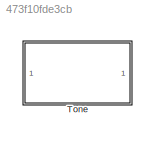
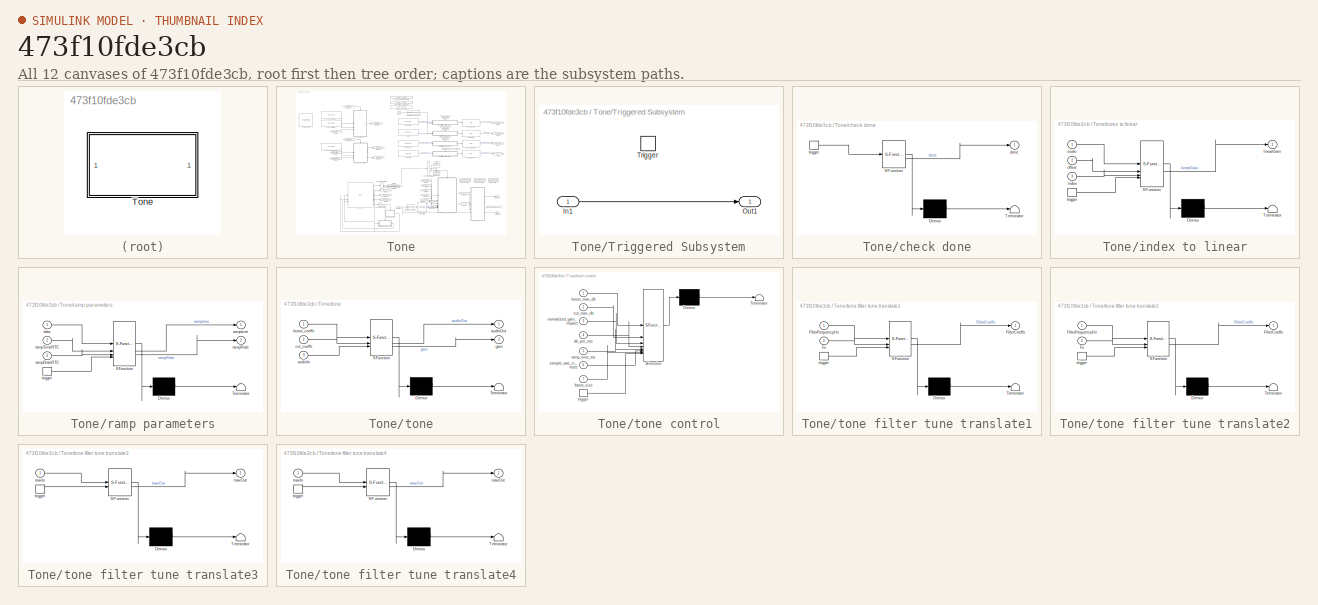
[diagram: thumbnail index - all 12 canvases of the model, root first then tree order]
MODEL slx_473f10fde3cb
KIND library
CONFIG AbsTol = auto
CONFIG EnableMultiTasking = off
CONFIG FixedStep = auto
CONFIG MaxStep = auto
CONFIG MinStep = auto
CONFIG RelTol = 1e-3
CONFIG SampleTimeConstraint = Unconstrained
CONFIG SolverName = VariableStepAuto
CONFIG StartTime = 0.0
CONFIG StopTime = 10.0
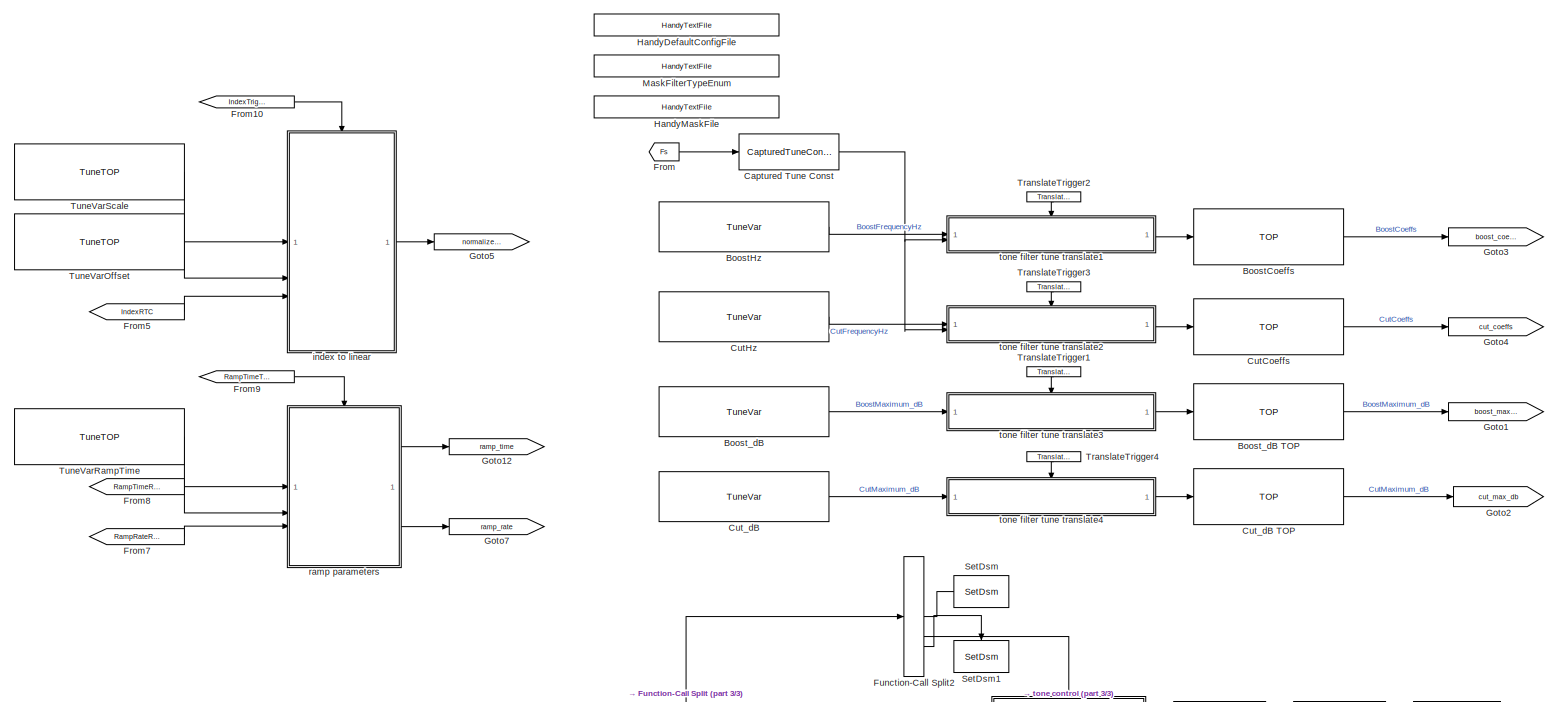
[diagram: Tone - part 1/3, full width, top band]
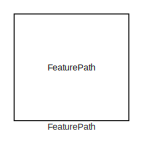
[diagram: Tone - part 2/3, top left region]
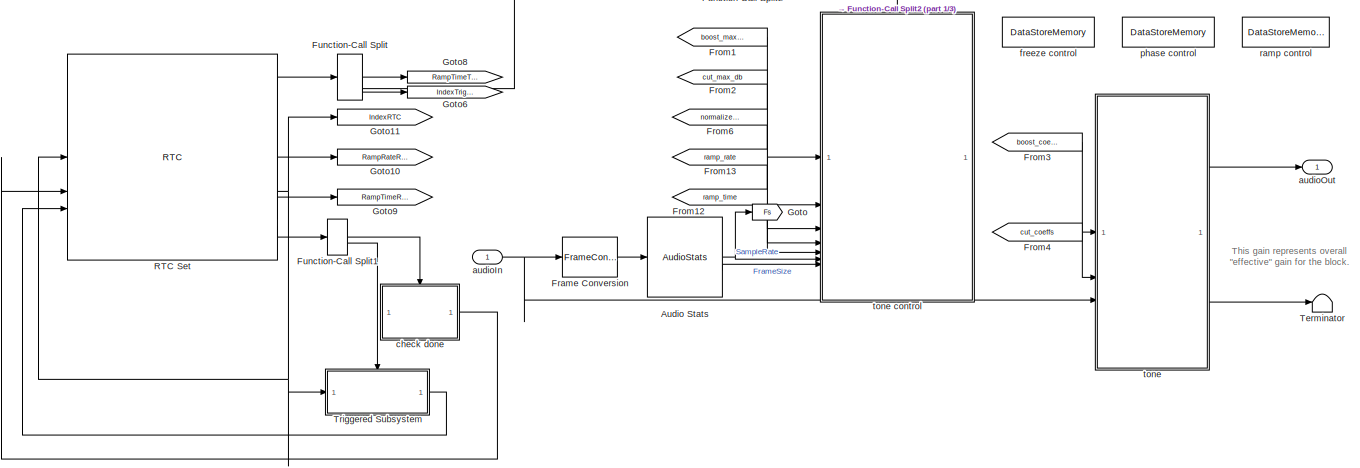
[diagram: Tone - part 3/3, full width, bottom band]
BLOCK [SubSystem] Tone
BLOCK [Reference] Tone/Audio Stats  REF=AudioStats/AudioStats
  SourceBlock = AudioStats/AudioStats
  SourceProductName = Bose Talaria
  SourceType = Talaria Audio Statistics
BLOCK [Reference] Tone/BoostCoeffs  REF=TOP/TOP
  SourceBlock = TOP/TOP
  SourceProductName = Bose Talaria
  SourceType = Talaria Target Overlay Parameter
BLOCK [Reference] Tone/BoostHz  REF=TuneVar/TuneVar
  Description = Indicates the 'corner frequency' of the target frequency band for the 'Boost' filter.
  SourceBlock = TuneVar/TuneVar
  SourceProductName = Bose Talaria
  SourceType = Talaria Tune Variable
BLOCK [Reference] Tone/Boost_dB  REF=TuneVar/TuneVar
  Description = Indicates the maximum impact in dB for the tone boost. This value must be positive. A negative boost impact would imply a gain cut instead!
  SourceBlock = TuneVar/TuneVar
  SourceProductName = Bose Talaria
  SourceType = Talaria Tune Variable
BLOCK [Reference] Tone/Boost_dB TOP  REF=TOP/TOP
  SourceBlock = TOP/TOP
  SourceProductName = Bose Talaria
  SourceType = Talaria Target Overlay Parameter
BLOCK [Reference] Tone/Captured Tune Const  REF=TuneVar/CapturedTuneConst
  SourceBlock = TuneVar/CapturedTuneConst
  SourceProductName = Bose Talaria
  SourceType = Talaria Captured Constant
BLOCK [Reference] Tone/CutCoeffs  REF=TOP/TOP
  SourceBlock = TOP/TOP
  SourceProductName = Bose Talaria
  SourceType = Talaria Target Overlay Parameter
BLOCK [Reference] Tone/CutHz  REF=TuneVar/TuneVar
  Description = Indicates the 'corner frequency' of the target frequency band for the 'Cut' filter.
  SourceBlock = TuneVar/TuneVar
  SourceProductName = Bose Talaria
  SourceType = Talaria Tune Variable
BLOCK [Reference] Tone/Cut_dB  REF=TuneVar/TuneVar
  Description = Indicates the maximum impact in dB for the tone cut. This value must be positive. A negative cut impact would imply a gain boost instead!
  SourceBlock = TuneVar/TuneVar
  SourceProductName = Bose Talaria
  SourceType = Talaria Tune Variable
BLOCK [Reference] Tone/Cut_dB TOP  REF=TOP/TOP
  SourceBlock = TOP/TOP
  SourceProductName = Bose Talaria
  SourceType = Talaria Target Overlay Parameter
BLOCK [Reference] Tone/FeaturePath  REF=FeaturePath/FeaturePath
  SourceBlock = FeaturePath/FeaturePath
  SourceProductName = Bose Talaria
  SourceType = Talaria Feature Path
BLOCK [FrameConversion] Tone/Frame Conversion
  OutFrame = Sample-based
BLOCK [From] Tone/From
  GotoTag = Fs
BLOCK [From] Tone/From1
  GotoTag = boost_max_db
BLOCK [From] Tone/From10
  GotoTag = IndexTrigger
BLOCK [From] Tone/From12
  GotoTag = ramp_time
BLOCK [From] Tone/From13
  GotoTag = ramp_rate
BLOCK [From] Tone/From2
  GotoTag = cut_max_db
BLOCK [From] Tone/From3
  GotoTag = boost_coeffs
BLOCK [From] Tone/From4
  GotoTag = cut_coeffs
BLOCK [From] Tone/From5
  GotoTag = IndexRTC
BLOCK [From] Tone/From6
  GotoTag = normalized_gain
BLOCK [From] Tone/From7
  GotoTag = RampRateRTC
BLOCK [From] Tone/From8
  GotoTag = RampTimeRTC
BLOCK [From] Tone/From9
  GotoTag = RampTimeTrigger
BLOCK [FunctionCallSplit] Tone/Function-Call Split
  IconShape = distinctive
  NumOutputPorts = 3
BLOCK [FunctionCallSplit] Tone/Function-Call Split1
  IconShape = distinctive
  NumOutputPorts = 2
  OutputPortLayout = default
BLOCK [FunctionCallSplit] Tone/Function-Call Split2
  IconShape = distinctive
  NumOutputPorts = 3
  OutputPortLayout = default
BLOCK [Goto] Tone/Goto
  GotoTag = Fs
BLOCK [Goto] Tone/Goto1
  GotoTag = boost_max_db
BLOCK [Goto] Tone/Goto10
  GotoTag = RampRateRTC
BLOCK [Goto] Tone/Goto11
  GotoTag = IndexRTC
BLOCK [Goto] Tone/Goto12
  GotoTag = ramp_time
BLOCK [Goto] Tone/Goto2
  GotoTag = cut_max_db
BLOCK [Goto] Tone/Goto3
  GotoTag = boost_coeffs
BLOCK [Goto] Tone/Goto4
  GotoTag = cut_coeffs
BLOCK [Goto] Tone/Goto5
  GotoTag = normalized_gain
BLOCK [Goto] Tone/Goto6
  GotoTag = IndexTrigger
BLOCK [Goto] Tone/Goto7
  GotoTag = ramp_rate
BLOCK [Goto] Tone/Goto8
  GotoTag = RampTimeTrigger
BLOCK [Goto] Tone/Goto9
  GotoTag = RampTimeRTC
BLOCK [Reference] Tone/HandyDefaultConfigFile  REF=HandyTextFile/HandyTextFile
  SourceBlock = HandyTextFile/HandyTextFile
  SourceProductName = Bose Talaria
  SourceType = Talaria Handy Text File
BLOCK [Reference] Tone/HandyMaskFile  REF=HandyTextFile/HandyTextFile
  SourceBlock = HandyTextFile/HandyTextFile
  SourceProductName = Bose Talaria
  SourceType = Talaria Handy Text File
BLOCK [Reference] Tone/MaskFilterTypeEnum  REF=HandyTextFile/HandyTextFile
  SourceBlock = HandyTextFile/HandyTextFile
  SourceProductName = Bose Talaria
  SourceType = Talaria Handy Text File
BLOCK [Reference] Tone/RTC Set  REF=RTC/RTC
  Description = Provide the target value as a 32-bit signed integer index value (to be mapped through a tunable calibration into a normalized float between -1 and 1).\n \nTo use slope-based ramping:\n----------------------------------\nWhen db_per_second has a non-zero value,ramp_milliseconds is ignored and db_per_second controls the ramp.\n \nTo use time-based ramping:\n----------------------------------\nThe value of d...<+76ch>
  SourceBlock = RTC/RTC
  SourceProductName = Bose Talaria
  SourceType = Talaria RTC Receive
BLOCK [Reference] Tone/SetDsm  REF=SetDsm/SetDsm
  SourceBlock = SetDsm/SetDsm
  SourceProductName = Bose Talaria
  SourceType = Talaria Set DSM
BLOCK [Reference] Tone/SetDsm1  REF=SetDsm/SetDsm
  SourceBlock = SetDsm/SetDsm
  SourceProductName = Bose Talaria
  SourceType = Talaria Set DSM
BLOCK [Terminator] Tone/Terminator
BLOCK [Reference] Tone/TranslateTrigger1  REF=TuneVar/TranslateTrigger
  NameLocation = left
  SourceBlock = TuneVar/TranslateTrigger
  SourceProductName = Bose Talaria
  SourceType = Talaria Translate Trigger
BLOCK [Reference] Tone/TranslateTrigger2  REF=TuneVar/TranslateTrigger
  NameLocation = left
  SourceBlock = TuneVar/TranslateTrigger
  SourceProductName = Bose Talaria
  SourceType = Talaria Translate Trigger
BLOCK [Reference] Tone/TranslateTrigger3  REF=TuneVar/TranslateTrigger
  NameLocation = left
  SourceBlock = TuneVar/TranslateTrigger
  SourceProductName = Bose Talaria
  SourceType = Talaria Translate Trigger
BLOCK [Reference] Tone/TranslateTrigger4  REF=TuneVar/TranslateTrigger
  NameLocation = left
  SourceBlock = TuneVar/TranslateTrigger
  SourceProductName = Bose Talaria
  SourceType = Talaria Translate Trigger
BLOCK [SubSystem] Tone/Triggered Subsystem
  TreatAsAtomicUnit = on
BLOCK [Inport] Tone/Triggered Subsystem/In1
BLOCK [Outport] Tone/Triggered Subsystem/Out1
BLOCK [TriggerPort] Tone/Triggered Subsystem/Trigger
  StatesWhenEnabling = held
  TriggerType = function-call
  VariantControl = Variant
BLOCK [Reference] Tone/TuneVarOffset  REF=TuneVar/TuneTOP
  Description = Offset represents the midpoint of the index range, which separates the 'boost' indices from the 'cut' indices.
  SourceBlock = TuneVar/TuneTOP
  SourceProductName = Bose Talaria
  SourceType = Talaria Trivial Tune TOP
BLOCK [Reference] Tone/TuneVarRampTime  REF=TuneVar/TuneTOP
  Description = This is the default ramp time that will be used if the RTC message has a '0' for both ramp time and ramp rate.
  SourceBlock = TuneVar/TuneTOP
  SourceProductName = Bose Talaria
  SourceType = Talaria Trivial Tune TOP
BLOCK [Reference] Tone/TuneVarScale  REF=TuneVar/TuneTOP
  Description = Scale is used to normalize the linear gain to a value between +/- 1. The range (0,1] represents a boost while the range [-1,0) represents a cut. We use the number of available indices in each range (mapped to gain values between [-1,1]) as the denominator for normalization, i.e. as the 'Scale'.
  SourceBlock = TuneVar/TuneTOP
  SourceProductName = Bose Talaria
  SourceType = Talaria Trivial Tune TOP
BLOCK [Inport] Tone/audioIn
BLOCK [Outport] Tone/audioOut
  VectorParamsAs1DForOutWhenUnconnected = off
BLOCK [SubSystem] Tone/check done
  ErrorFcn = Stateflow.Translate.translate
  PermitHierarchicalResolution = ExplicitOnly
  SFBlockType = MATLAB Function
  TreatAsAtomicUnit = on
BLOCK [Demux] Tone/check done/ Demux 
  Outputs = 1
BLOCK [S-Function] Tone/check done/ SFunction 
  EnableBusSupport = off
  FunctionName = sf_sfun
  PortCounts = [1 2]
  SFcnIsStateOwnerBlock = off
  SFunctionDeploymentMode = off
  Tag = Stateflow S-Function 2
BLOCK [Terminator] Tone/check done/ Terminator 
BLOCK [Outport] Tone/check done/done
  VectorParamsAs1DForOutWhenUnconnected = off
BLOCK [TriggerPort] Tone/check done/trigger
  ShowOutputPort = on
  StatesWhenEnabling = held
  TriggerType = function-call
  VariantControl = Variant
BLOCK [DataStoreMemory] Tone/freeze control
  DataStoreName = Freeze
  OutDataTypeStr = uint32
  ShowAdditionalParam = off
  SignalType = real
BLOCK [SubSystem] Tone/index to linear
  ErrorFcn = Stateflow.Translate.translate
  PermitHierarchicalResolution = ExplicitOnly
  SFBlockType = MATLAB Function
  TreatAsAtomicUnit = on
BLOCK [Demux] Tone/index to linear/ Demux 
  Outputs = 1
BLOCK [S-Function] Tone/index to linear/ SFunction 
  EnableBusSupport = off
  FunctionName = sf_sfun
  PortCounts = [4 2]
  SFcnIsStateOwnerBlock = off
  SFunctionDeploymentMode = off
  Tag = Stateflow S-Function 3
BLOCK [Terminator] Tone/index to linear/ Terminator 
BLOCK [Inport] Tone/index to linear/index
  Port = 3
BLOCK [Outport] Tone/index to linear/linearGain
  VectorParamsAs1DForOutWhenUnconnected = off
BLOCK [Inport] Tone/index to linear/offset
  Port = 2
BLOCK [Inport] Tone/index to linear/scale
BLOCK [TriggerPort] Tone/index to linear/trigger
  ShowOutputPort = on
  StatesWhenEnabling = held
  TriggerType = function-call
  VariantControl = Variant
BLOCK [DataStoreMemory] Tone/phase control
  DataStoreName = Phase
  InitialValue = 1
  OutDataTypeStr = uint32
  ShowAdditionalParam = off
  SignalType = real
BLOCK [DataStoreMemory] Tone/ramp control
  DataStoreName = Rampers
  InitialValue = Config.DlgRamperInit
  OutDataTypeStr = Bus: rgain_bus
  ShowAdditionalParam = off
  SignalType = real
BLOCK [SubSystem] Tone/ramp parameters
  ErrorFcn = Stateflow.Translate.translate
  PermitHierarchicalResolution = ExplicitOnly
  SFBlockType = MATLAB Function
  TreatAsAtomicUnit = on
BLOCK [Demux] Tone/ramp parameters/ Demux 
  Outputs = 1
BLOCK [S-Function] Tone/ramp parameters/ SFunction 
  EnableBusSupport = off
  FunctionName = sf_sfun
  Parameters = rampRateBounds,rampTimeBounds
  PortCounts = [4 3]
  SFcnIsStateOwnerBlock = off
  SFunctionDeploymentMode = off
  Tag = Stateflow S-Function 1
BLOCK [Terminator] Tone/ramp parameters/ Terminator 
BLOCK [Inport] Tone/ramp parameters/data
BLOCK [Outport] Tone/ramp parameters/rampRate
  Port = 2
  VectorParamsAs1DForOutWhenUnconnected = off
BLOCK [Inport] Tone/ramp parameters/rampRateRTC
  Port = 3
BLOCK [Inport] Tone/ramp parameters/rampTimeRTC
  Port = 2
BLOCK [Outport] Tone/ramp parameters/ramptime
  VectorParamsAs1DForOutWhenUnconnected = off
BLOCK [TriggerPort] Tone/ramp parameters/trigger
  ShowOutputPort = on
  StatesWhenEnabling = held
  TriggerType = function-call
  VariantControl = Variant
BLOCK [SubSystem] Tone/tone
  ErrorFcn = Stateflow.Translate.translate
  PermitHierarchicalResolution = ExplicitOnly
  RTWSystemCode = Reusable function
  SFBlockType = MATLAB Function
  TreatAsAtomicUnit = on
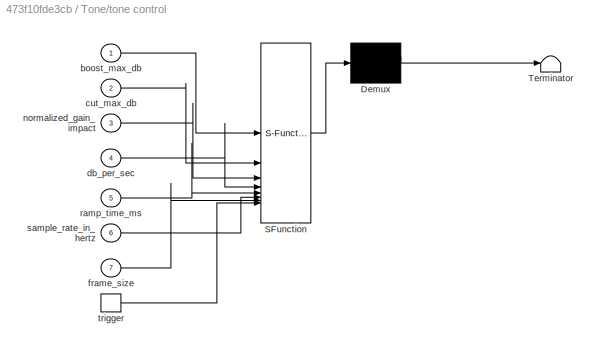
BLOCK [SubSystem] Tone/tone control
  ErrorFcn = Stateflow.Translate.translate
  PermitHierarchicalResolution = ExplicitOnly
  RTWSystemCode = Reusable function
  SFBlockType = MATLAB Function
  TreatAsAtomicUnit = on
BLOCK [Demux] Tone/tone control/ Demux 
  Outputs = 1
BLOCK [S-Function] Tone/tone control/ SFunction 
  EnableBusSupport = off
  FunctionName = sf_sfun
  Parameters = rgain_SILENT_GAIN
  PortCounts = [8 1]
  SFcnIsStateOwnerBlock = off
  SFunctionDeploymentMode = off
  Tag = Stateflow S-Function 6
BLOCK [Terminator] Tone/tone control/ Terminator 
BLOCK [Inport] Tone/tone control/boost_max_db
BLOCK [Inport] Tone/tone control/cut_max_db
  Port = 2
BLOCK [Inport] Tone/tone control/db_per_sec
  Port = 4
BLOCK [Inport] Tone/tone control/frame_size
  Port = 7
BLOCK [Inport] Tone/tone control/normalized_gain_impact
  Port = 3
BLOCK [Inport] Tone/tone control/ramp_time_ms
  Port = 5
BLOCK [Inport] Tone/tone control/sample_rate_in_hertz
  Port = 6
BLOCK [TriggerPort] Tone/tone control/trigger
  ShowOutputPort = on
  StatesWhenEnabling = held
  TriggerType = function-call
  VariantControl = Variant
BLOCK [SubSystem] Tone/tone filter tune translate1
  ErrorFcn = Stateflow.Translate.translate
  PermitHierarchicalResolution = ExplicitOnly
  SFBlockType = MATLAB Function
  TreatAsAtomicUnit = on
BLOCK [Demux] Tone/tone filter tune translate1/ Demux 
  Outputs = 1
BLOCK [S-Function] Tone/tone filter tune translate1/ SFunction 
  EnableBusSupport = off
  FunctionName = sf_sfun
  Parameters = MaskFilterType
  PortCounts = [3 2]
  SFcnIsStateOwnerBlock = off
  SFunctionDeploymentMode = off
  Tag = Stateflow S-Function 7
BLOCK [Terminator] Tone/tone filter tune translate1/ Terminator 
BLOCK [Outport] Tone/tone filter tune translate1/FilterCoeffs
  VectorParamsAs1DForOutWhenUnconnected = off
BLOCK [Inport] Tone/tone filter tune translate1/FilterFrequencyHz
BLOCK [Inport] Tone/tone filter tune translate1/Fs
  Port = 2
BLOCK [TriggerPort] Tone/tone filter tune translate1/trigger
  ShowOutputPort = on
  StatesWhenEnabling = held
  TriggerType = function-call
  VariantControl = Variant
BLOCK [SubSystem] Tone/tone filter tune translate2
  ErrorFcn = Stateflow.Translate.translate
  PermitHierarchicalResolution = ExplicitOnly
  SFBlockType = MATLAB Function
  TreatAsAtomicUnit = on
BLOCK [Demux] Tone/tone filter tune translate2/ Demux 
  Outputs = 1
BLOCK [S-Function] Tone/tone filter tune translate2/ SFunction 
  EnableBusSupport = off
  FunctionName = sf_sfun
  Parameters = MaskFilterType
  PortCounts = [3 2]
  SFcnIsStateOwnerBlock = off
  SFunctionDeploymentMode = off
  Tag = Stateflow S-Function 10
BLOCK [Terminator] Tone/tone filter tune translate2/ Terminator 
BLOCK [Outport] Tone/tone filter tune translate2/FilterCoeffs
  VectorParamsAs1DForOutWhenUnconnected = off
BLOCK [Inport] Tone/tone filter tune translate2/FilterFrequencyHz
BLOCK [Inport] Tone/tone filter tune translate2/Fs
  Port = 2
BLOCK [TriggerPort] Tone/tone filter tune translate2/trigger
  ShowOutputPort = on
  StatesWhenEnabling = held
  TriggerType = function-call
  VariantControl = Variant
BLOCK [SubSystem] Tone/tone filter tune translate3
  ErrorFcn = Stateflow.Translate.translate
  PermitHierarchicalResolution = ExplicitOnly
  SFBlockType = MATLAB Function
  TreatAsAtomicUnit = on
BLOCK [Demux] Tone/tone filter tune translate3/ Demux 
  Outputs = 1
BLOCK [S-Function] Tone/tone filter tune translate3/ SFunction 
  EnableBusSupport = off
  FunctionName = sf_sfun
  PortCounts = [2 2]
  SFcnIsStateOwnerBlock = off
  SFunctionDeploymentMode = off
  Tag = Stateflow S-Function 12
BLOCK [Terminator] Tone/tone filter tune translate3/ Terminator 
BLOCK [Inport] Tone/tone filter tune translate3/maxIn
BLOCK [Outport] Tone/tone filter tune translate3/maxOut
  VectorParamsAs1DForOutWhenUnconnected = off
BLOCK [TriggerPort] Tone/tone filter tune translate3/trigger
  ShowOutputPort = on
  StatesWhenEnabling = held
  TriggerType = function-call
  VariantControl = Variant
BLOCK [SubSystem] Tone/tone filter tune translate4
  ErrorFcn = Stateflow.Translate.translate
  PermitHierarchicalResolution = ExplicitOnly
  SFBlockType = MATLAB Function
  TreatAsAtomicUnit = on
BLOCK [Demux] Tone/tone filter tune translate4/ Demux 
  Outputs = 1
BLOCK [S-Function] Tone/tone filter tune translate4/ SFunction 
  EnableBusSupport = off
  FunctionName = sf_sfun
  PortCounts = [2 2]
  SFcnIsStateOwnerBlock = off
  SFunctionDeploymentMode = off
  Tag = Stateflow S-Function 13
BLOCK [Terminator] Tone/tone filter tune translate4/ Terminator 
BLOCK [Inport] Tone/tone filter tune translate4/maxIn
BLOCK [Outport] Tone/tone filter tune translate4/maxOut
  VectorParamsAs1DForOutWhenUnconnected = off
BLOCK [TriggerPort] Tone/tone filter tune translate4/trigger
  ShowOutputPort = on
  StatesWhenEnabling = held
  TriggerType = function-call
  VariantControl = Variant
BLOCK [Demux] Tone/tone/ Demux 
  Outputs = 1
BLOCK [S-Function] Tone/tone/ SFunction 
  EnableBusSupport = off
  FunctionName = sf_sfun
  PortCounts = [3 3]
  SFcnIsStateOwnerBlock = off
  SFunctionDeploymentMode = off
  Tag = Stateflow S-Function 5
BLOCK [Terminator] Tone/tone/ Terminator 
BLOCK [Inport] Tone/tone/audioIn
  Port = 3
BLOCK [Outport] Tone/tone/audioOut
  VectorParamsAs1DForOutWhenUnconnected = off
BLOCK [Inport] Tone/tone/boost_coeffs
BLOCK [Inport] Tone/tone/cut_coeffs
  Port = 2
BLOCK [Outport] Tone/tone/gain
  Port = 2
  VectorParamsAs1DForOutWhenUnconnected = off
ANNOTATION Tone: This gain represents overall "effective" gain for the block.
CHART Tone/tone filter tune translate1 states=1 transitions=1
  STATE_LABEL 'eML_blk_kernel()'
  STATE_LABEL 'SCRIPT:\nfunction FilterCoeffs  = fcn( ...\n    FilterFrequencyHz, Fs, ... % inputs\n    MaskFilterType ) % parameters\n%#codegen\n\nomega = 2 * pi * FilterFrequencyHz.Value / Fs;\n\nA = (1 - sin(omega)) / cos(omega);\n\nif (MaskFilterType == ToneMask.TypeLowpass)\n    % lowpass coeffs (e.g. bass)\n    B0 = (1 - A) / 2;\n    B1 = B0;\nelse\n    % highpass coeffs (e.g. treble)\n    B0 = (1 + A) / 2;\n    B1 = 0 - B...<+42ch>'
CHART Tone/tone filter tune translate2 states=1 transitions=1
  STATE_LABEL 'eML_blk_kernel()'
  STATE_LABEL 'SCRIPT:\nfunction FilterCoeffs  = fcn( ...\n    FilterFrequencyHz, Fs, ... % inputs\n    MaskFilterType ) % parameters\n%#codegen\n\nomega = 2 * pi * FilterFrequencyHz.Value / Fs;\n\nA = (1 - sin(omega)) / cos(omega);\n\nif (MaskFilterType == ToneMask.TypeLowpass)\n    % lowpass coeffs (e.g. bass)\n    B0 = (1 - A) / 2;\n    B1 = B0;\nelse\n    % highpass coeffs (e.g. treble)\n    B0 = (1 + A) / 2;\n    B1 = 0 - B...<+42ch>'
CHART Tone/tone filter tune translate3 states=1 transitions=1
  STATE_LABEL 'eML_blk_kernel()'
  STATE_LABEL 'SCRIPT:\nfunction maxOut  = fcn( ...\n    maxIn) ... % inputs % parameters\n%#codegen\n\n% Just make sure the maximum is a positive dB value\nmaxOut = single(abs(maxIn.Value));\n'
CHART Tone/tone filter tune translate4 states=1 transitions=1
  STATE_LABEL 'eML_blk_kernel()'
  STATE_LABEL 'SCRIPT:\nfunction maxOut  = fcn( ...\n    maxIn) ... % inputs % parameters\n%#codegen\n\n% Just make sure the maximum is a positive dB value\nmaxOut = single(abs(maxIn.Value));\n'
CHART Tone/ramp parameters states=1 transitions=1
  STATE_LABEL 'eML_blk_kernel()'
  STATE_LABEL 'SCRIPT:\nfunction [ramptime, rampRate]  = ramp_parameters( data, rampTimeRTC, rampRateRTC,... % inputs\n    rampRateBounds, rampTimeBounds) % parameters\n\n%#codegen\n    % Ramp time mentioned in the RTC message gets priority over the tune\n    % variable. Boundary conditions are also included based on BDSP values.\n    % If neither ramp time nor rate are given in the RTC message (i.e. both\n    % = 0), t...<+507ch>'
CHART Tone/check done states=1 transitions=1
  STATE_LABEL 'eML_blk_kernel()'
  STATE_LABEL 'SCRIPT:\nfunction done  = fcn\n%#codegen\n\nglobal Rampers;\n\n% Checking whether the frameCounts are exactly equal to 0 was leading to\n% unpredictable behavior. Therefore, we now check whether or not the \n% frameCounts are less-than/equal-to 0.\n% See SAMPLERATE-1196 & SAMPLERATE-1205 for more details. \ndone = (Rampers(1).frameCount <= 0) && (Rampers(2).frameCount <= 0);'
CHART Tone/index to linear states=1 transitions=1
  STATE_LABEL 'eML_blk_kernel()'
  STATE_LABEL "SCRIPT:\nfunction linearGain = compute_gain(scale,offset,index)\n%#codegen\n\n% The midrange curve is configured as a piecewise linear plot, with\n% configurable values of the maximum boost ('maxB') and maximum cut ('maxC')\n% in dB. \n%    dB ^\n%       |\n% maxB  ----------/\n%       |        /\n%       |       /\n%  0    ------|---|----> index\n%       |   /128  255\n%       |  /\n% maxC  --/\n%       |\n% Henc...<+701ch>"
CHART Tone/tone states=1 transitions=1
  STATE_LABEL 'eML_blk_kernel()'
  STATE_LABEL 'SCRIPT:\nfunction [audioOut,gain] ...\n    = toneProcess(boost_coeffs, cut_coeffs, audioIn)...    % inputs % parameters\n  \n%#codegen\n\n% Data Store objects (registered in "Edit Data" dialog\nglobal Rampers;\nglobal Freeze;\nglobal Phase;\n\n% Keep memory for the filter persistent from frame to frame\npersistent toneFilterStates;\n\n% figure out the frame size and channel count\n[frame_size, channel_count] = s...<+2189ch>'
CHART Tone/tone control states=1 transitions=1
  STATE_LABEL 'eML_blk_kernel()'
  STATE_LABEL 'SCRIPT:\nfunction control(...\n    boost_max_db, cut_max_db, ... %inputs\n    normalized_gain_impact, db_per_sec, ramp_time_ms, sample_rate_in_hertz, frame_size, ... % inputs % parameters\n    rgain_SILENT_GAIN) %parameters\n\n% See Control summary at the end:\nglobal Phase;\nglobal Rampers;\n\n% Step 1: FREEZE the gain ramper so that we can perform calculations based\n% on the current gain value. (This step...<+3608ch>'
CHART  states=0 transitions=0
CHART  states=0 transitions=0
CHART  states=0 transitions=0
CHART  states=0 transitions=0
CHART  states=0 transitions=0
CHART  states=0 transitions=0
CHART  states=0 transitions=0
CHART  states=0 transitions=0
CHART  states=0 transitions=0
